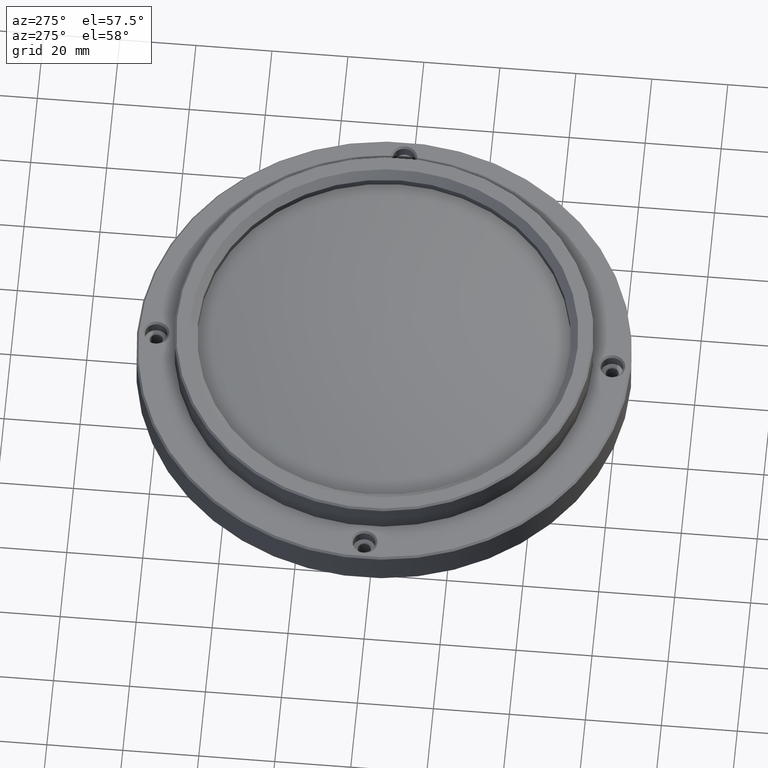
[diagram: clean part render]
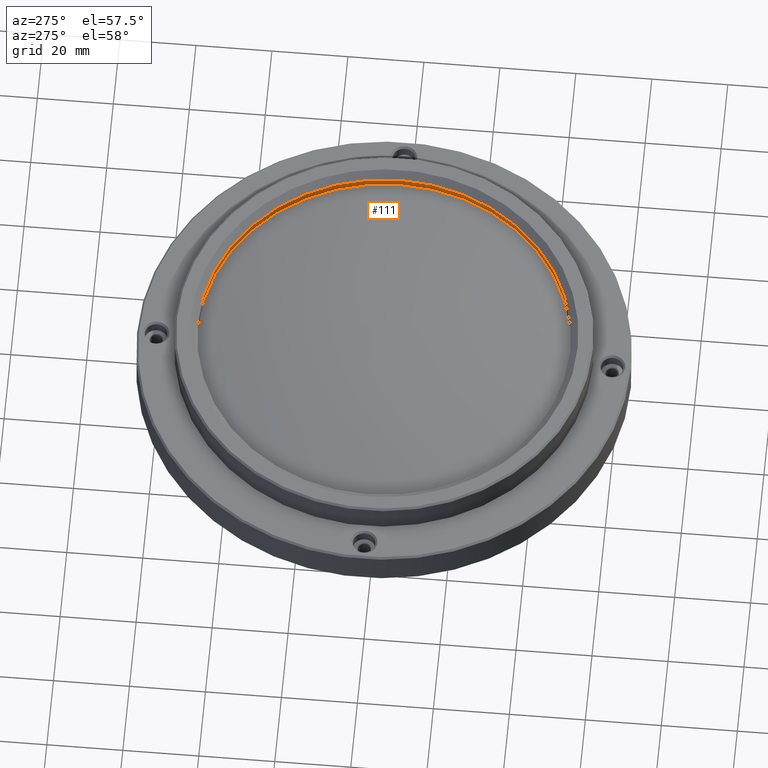
[diagram: same view with one face highlighted and labeled with its STEP entity id]
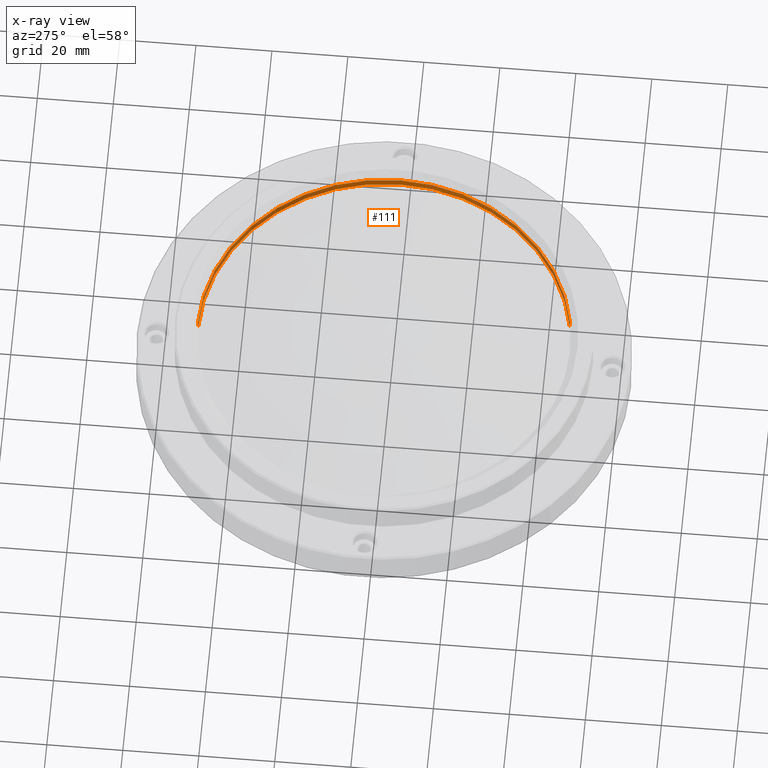
[diagram: x-ray of the same camera — body ghosted, the highlighted face saturated]
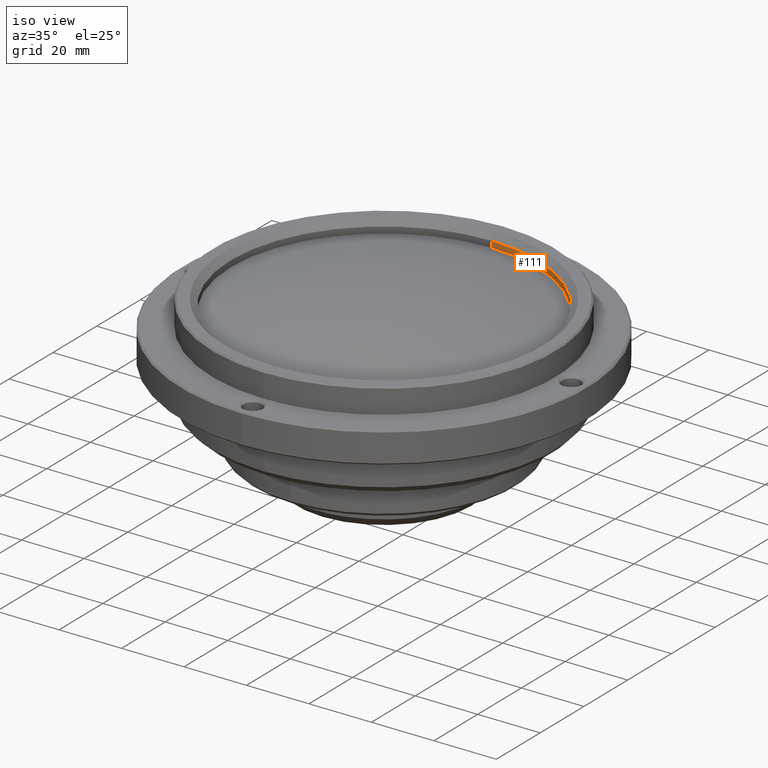
[diagram: same view with one face highlighted and labeled with its STEP entity id]
A machine part, auxiliary view. The second image highlights one B-rep face of the part: STEP entity #111.
The next image is the same camera in x-ray: the body ghosted, the highlighted face saturated — about 0% of this face is hidden behind the body in this view.
A second angle (iso view) of the same face is appended — the face is thin or edge-on in the first view.
In plain terms, the highlighted cylindrical surface (partial cylindrical patch) has radius 49 mm, axis along (0, 0, -1).
Its self-contained STEP definition (entity closure, byte-faithful):
#64 = DIRECTION ( 'NONE',  ( 1.356287139274000074E-09, 1.451419962120000234E-10, -1.000000000000000000 ) ) ;
#106 = CARTESIAN_POINT ( 'NONE',  ( 0.000000000000000000, 49.00000000000000000, 70.50000850951001041 ) ) ;
#111 = ADVANCED_FACE ( 'NONE', ( #344 ), #1192, .F. ) ;
#171 = DIRECTION ( 'NONE',  ( 0.000000000000000000, 0.000000000000000000, -1.000000000000000000 ) ) ;
#224 = VERTEX_POINT ( 'NONE', #106 ) ;
#282 = CARTESIAN_POINT ( 'NONE',  ( 0.000000000000000000, 0.000000000000000000, 70.50000850951001041 ) ) ;
#336 = AXIS2_PLACEMENT_3D ( 'NONE', #1047, #171, #1602 ) ;
#344 = FACE_OUTER_BOUND ( 'NONE', #1596, .T. ) ;
#364 = ORIENTED_EDGE ( 'NONE', *, *, #1371, .F. ) ;
#373 = CARTESIAN_POINT ( 'NONE',  ( 2.729760119852999674E-09, -48.99999999970999909, 70.50000850922000950 ) ) ;
#424 = DIRECTION ( 'NONE',  ( 0.000000000000000000, -1.000000000000000000, 0.000000000000000000 ) ) ;
#451 = VERTEX_POINT ( 'NONE', #1953 ) ;
#586 = VECTOR ( 'NONE', #64, 1000.000000000000000 ) ;
#617 = CARTESIAN_POINT ( 'NONE',  ( -1.200153863163999924E-14, -49.00000000000000000, 68.48732132992999766 ) ) ;
#630 = VERTEX_POINT ( 'NONE', #617 ) ;
#679 = CIRCLE ( 'NONE', #1981, 49.00000000000000000 ) ;
#802 = DIRECTION ( 'NONE',  ( 0.000000000000000000, 0.000000000000000000, 1.000000000000000000 ) ) ;
#1047 = CARTESIAN_POINT ( 'NONE',  ( 0.000000000000000000, 0.000000000000000000, 79.27499999999999147 ) ) ;
#1066 = DIRECTION ( 'NONE',  ( -1.356279380473999847E-09, -1.451419962120000234E-10, -1.000000000000000000 ) ) ;
#1177 = CARTESIAN_POINT ( 'NONE',  ( 0.000000000000000000, 49.00000000000000000, 68.48732132992999766 ) ) ;
#1192 = CYLINDRICAL_SURFACE ( 'NONE', #336, 49.00000000000000000 ) ;
#1350 = DIRECTION ( 'NONE',  ( 0.000000000000000000, 0.000000000000000000, -1.000000000000000000 ) ) ;
#1356 = CIRCLE ( 'NONE', #1887, 49.00000000000000000 ) ;
#1371 = EDGE_CURVE ( 'NONE', #451, #630, #1964, .T. ) ;
#1447 = CARTESIAN_POINT ( 'NONE',  ( -2.729775735888000083E-09, 48.99999999970999909, 70.50000850922000950 ) ) ;
#1485 = EDGE_CURVE ( 'NONE', #1550, #630, #679, .T. ) ;
#1550 = VERTEX_POINT ( 'NONE', #1177 ) ;
#1596 = EDGE_LOOP ( 'NONE', ( #1886, #1944, #364, #1690 ) ) ;
#1602 = DIRECTION ( 'NONE',  ( 0.000000000000000000, -1.000000000000000000, 0.000000000000000000 ) ) ;
#1690 = ORIENTED_EDGE ( 'NONE', *, *, #1793, .T. ) ;
#1692 = EDGE_CURVE ( 'NONE', #224, #1550, #1779, .T. ) ;
#1779 = LINE ( 'NONE', #1447, #586 ) ;
#1793 = EDGE_CURVE ( 'NONE', #451, #224, #1356, .T. ) ;
#1886 = ORIENTED_EDGE ( 'NONE', *, *, #1692, .T. ) ;
#1887 = AXIS2_PLACEMENT_3D ( 'NONE', #282, #802, #424 ) ;
#1944 = ORIENTED_EDGE ( 'NONE', *, *, #1485, .T. ) ;
#1953 = CARTESIAN_POINT ( 'NONE',  ( -1.200153863163999924E-14, -49.00000000000000000, 70.50000850951001041 ) ) ;
#1964 = LINE ( 'NONE', #373, #2058 ) ;
#1981 = AXIS2_PLACEMENT_3D ( 'NONE', #2241, #1350, #2068 ) ;
#2058 = VECTOR ( 'NONE', #1066, 1000.000000000000000 ) ;
#2068 = DIRECTION ( 'NONE',  ( 0.000000000000000000, 1.000000000000000000, 0.000000000000000000 ) ) ;
#2241 = CARTESIAN_POINT ( 'NONE',  ( 0.000000000000000000, 0.000000000000000000, 68.48732132992999766 ) ) ;